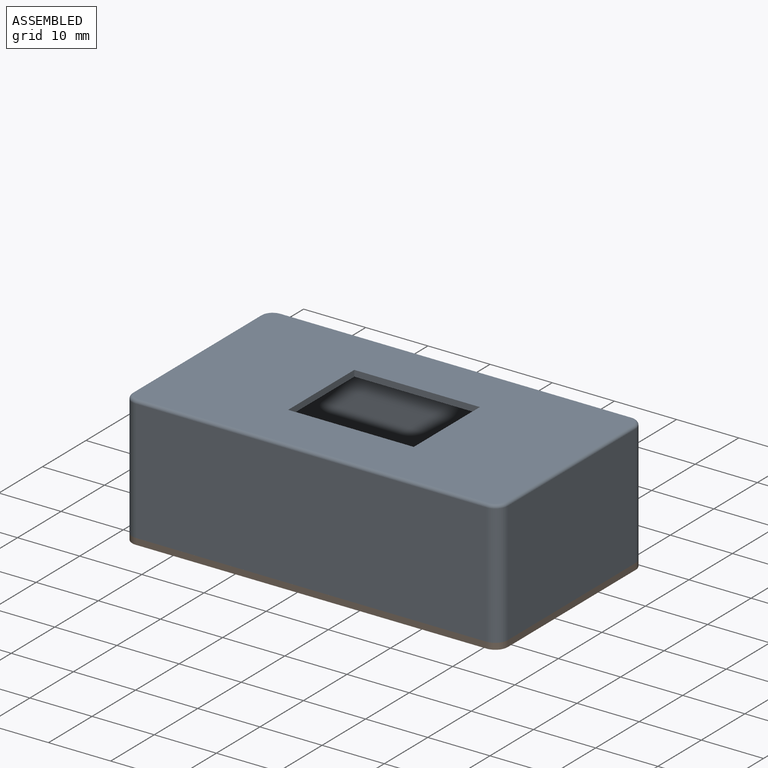
[diagram: assembled view]
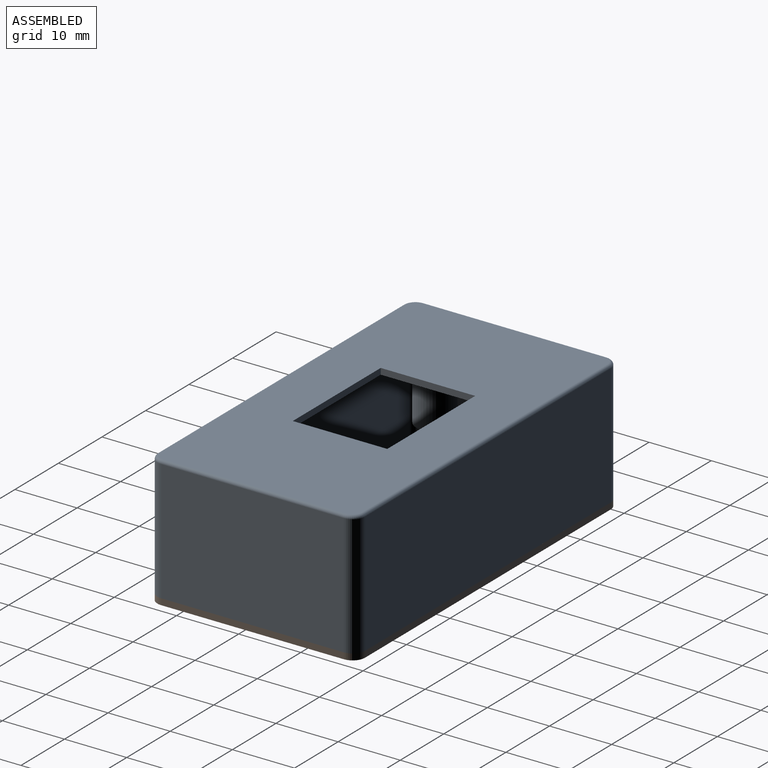
[diagram: assembled view, second angle]
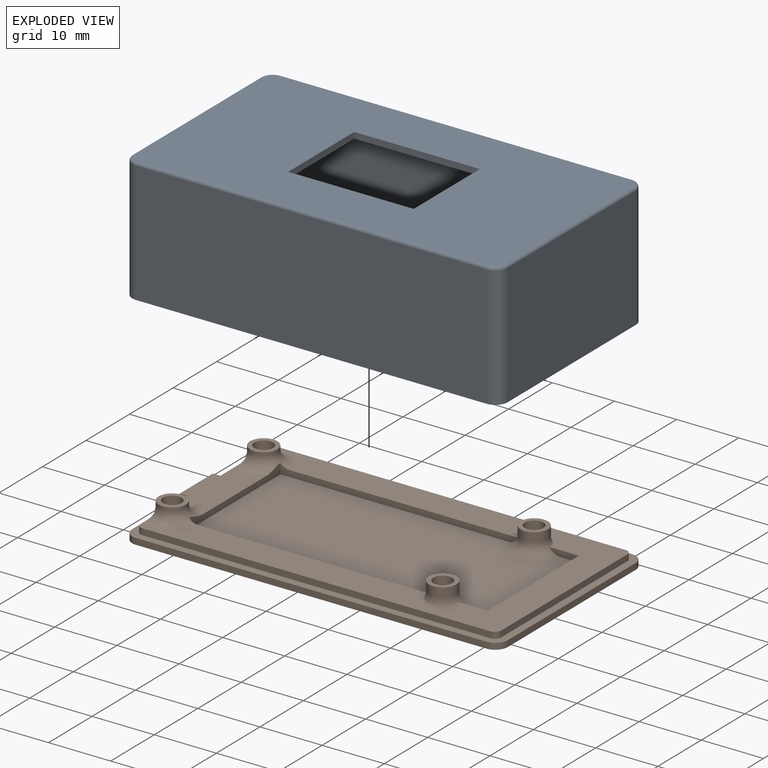
[diagram: exploded view]
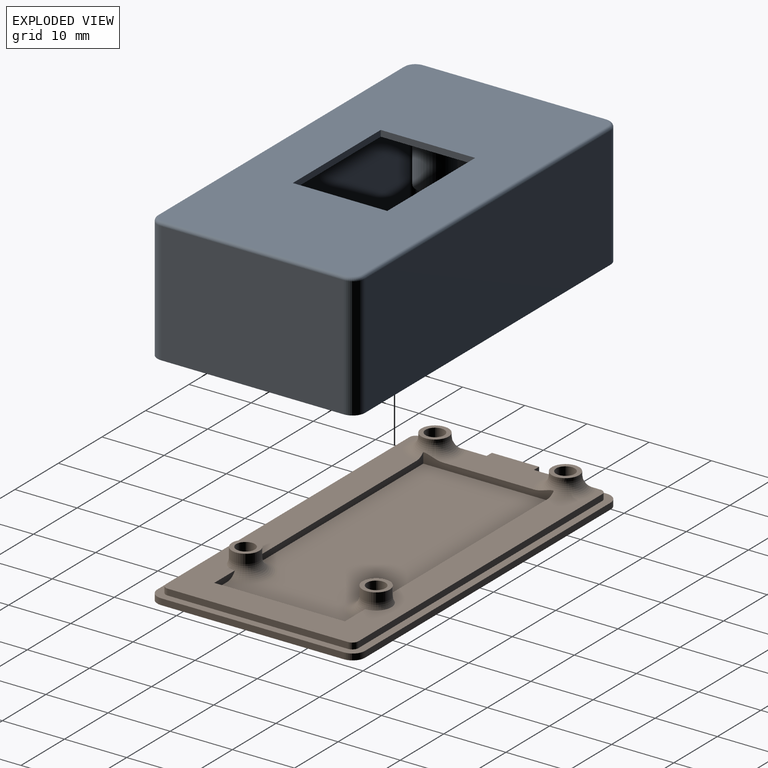
[diagram: exploded view, second angle]
ASSEMBLY  parts=2 mates=3
PART A: 54 faces, bbox 60.7x33.7x20 mm
  f0: plane 58.4x31.4mm, normal (0,0,-1), area 1407.9mm2, adj f1,f2,f3,f4,f11,f12,f13,f14
  f1: plane 56.4x19mm, normal (0,-1,0), area 1049.2mm2, adj f0,f5,f33,f35,f36,f44,f45
  f2: plane 29.4x19mm, normal (1,0,0), area 433.7mm2, adj f0,f5,f15,f16,f17,f19,f20,f23
  f3: plane 29.4x19mm, normal (-1,0,0), area 558.6mm2, adj f0,f5,f43,f44
  f4: plane 56.4x19mm, normal (0,1,0), area 1049.2mm2, adj f0,f5,f27,f28,f30,f42,f43
  f5: plane 60.4x33.4mm, normal (0,0,-1), area 173mm2, adj f1,f2,f3,f4,f6,f7,f8,f9
  f6: plane 56.4x19.5mm, normal (0,-1,0), area 1099.8mm2, adj f5,f40,f41,f46
  f7: plane 29.4x19.5mm, normal (1,0,0), area 573.3mm2, adj f5,f38,f41,f49
  f8: plane 56.4x19.5mm, normal (0,1,0), area 1099.8mm2, adj f5,f38,f39,f53
  f9: plane 29.4x19.5mm, normal (-1,0,0), area 541.3mm2, adj f5,f15,f16,f17,f39,f40,f50
  f10: plane 59.4x32.4mm, normal (0,0,1), area 1615.6mm2, adj f11,f12,f13,f14,f46,f47,f48,f49
  f11: plane 15.2x1mm, normal (-1,0,0), area 15.2mm2, adj f0,f10,f12,f14
  f12: plane 20.2x1mm, normal (0,-1,0), area 20.2mm2, adj f0,f10,f11,f13
  f13: plane 15.2x1mm, normal (1,0,0), area 15.2mm2, adj f0,f10,f12,f14
  f14: plane 20.2x1mm, normal (0,1,0), area 20.2mm2, adj f0,f10,f11,f13
  f15: plane 4x1mm, normal (0,-1,0), area 4mm2, adj f2,f5,f9,f16
  f16: plane 8x1mm, normal (0,0,-1), area 8mm2, adj f2,f9,f15,f17
  f17: plane 4x1mm, normal (0,1,0), area 4mm2, adj f2,f5,f9,f16
  f18: cylinder r=1.3mm len=14mm, axis (0,0,1), area 114.4mm2, adj f20,f21
  f19: cylinder r=3mm len=14mm, axis (0,0,1), area 214.7mm2, adj f0,f2,f20
  f20: plane 6x5.5mm, normal (0,0,-1), area 21.8mm2, adj f2,f18,f19
  f21: plane 2.6x2.6mm, normal (0,0,-1), area 5.3mm2, adj f18
  f22: cylinder r=1.3mm len=14mm, axis (0,0,1), area 114.4mm2, adj f24,f25
  f23: cylinder r=3mm len=14mm, axis (0,0,1), area 214.7mm2, adj f0,f2,f24
  f24: plane 6x5.5mm, normal (0,0,-1), area 21.8mm2, adj f2,f22,f23
  f25: plane 2.6x2.6mm, normal (0,0,-1), area 5.3mm2, adj f22
  f26: cylinder r=3mm len=14mm, axis (0,0,1), area 241.2mm2, adj f0,f27,f28,f30
  f27: plane 14x2.31mm, normal (1,0,0), area 32.3mm2, adj f0,f4,f26,f30
  f28: plane 14x2.31mm, normal (-1,0,0), area 32.3mm2, adj f0,f4,f26,f30
  f29: cylinder r=1.3mm len=14mm, axis (0,0,1), area 114.4mm2, adj f30,f31
  f30: plane 8.2x6mm, normal (0,0,-1), area 26.5mm2, adj f4,f26,f27,f28,f29
  f31: plane 2.6x2.6mm, normal (0,0,-1), area 5.3mm2, adj f29
  f32: cylinder r=3mm len=14mm, axis (0,0,1), area 241.2mm2, adj f0,f33,f35,f36
  f33: plane 14x2.31mm, normal (-1,0,0), area 32.3mm2, adj f0,f1,f32,f36
  f34: cylinder r=1.3mm len=14mm, axis (0,0,1), area 114.4mm2, adj f36,f37
  f35: plane 14x2.31mm, normal (1,0,0), area 32.3mm2, adj f0,f1,f32,f36
  f36: plane 8.2x6mm, normal (0,0,-1), area 26.5mm2, adj f1,f32,f33,f34,f35
  f37: plane 2.6x2.6mm, normal (0,0,-1), area 5.3mm2, adj f34
  f38: cylinder r=2mm len=19.5mm, axis (0,0,-1), area 61.3mm2, adj f5,f7,f8,f51
  f39: cylinder r=2mm len=19.5mm, axis (0,0,-1), area 61.3mm2, adj f5,f8,f9,f52
  f40: cylinder r=2mm len=19.5mm, axis (0,0,-1), area 61.3mm2, adj f5,f6,f9,f48
  f41: cylinder r=2mm len=19.5mm, axis (0,0,-1), area 61.3mm2, adj f5,f6,f7,f47
  f42: cylinder r=1mm len=19mm, axis (0,0,1), area 29.8mm2, adj f0,f2,f4,f5
  f43: cylinder r=1mm len=19mm, axis (0,0,1), area 29.8mm2, adj f0,f3,f4,f5
  f44: cylinder r=1mm len=19mm, axis (0,0,1), area 29.8mm2, adj f0,f1,f3,f5
  f45: cylinder r=1mm len=19mm, axis (0,0,1), area 29.8mm2, adj f0,f1,f2,f5
  f46: cylinder r=0.5mm len=56.4mm, axis (-1,0,0), area 44.3mm2, adj f6,f10,f47,f48
  f47: torus R=1.5mm, axis (0,0,1), area 2.2mm2, adj f10,f41,f46,f49
  f48: torus R=1.5mm, axis (0,0,1), area 2.2mm2, adj f10,f40,f46,f50
  f49: cylinder r=0.5mm len=29.4mm, axis (0,-1,0), area 23.1mm2, adj f7,f10,f47,f51
  f50: cylinder r=0.5mm len=29.4mm, axis (0,1,0), area 23.1mm2, adj f9,f10,f48,f52
  f51: torus R=1.5mm, axis (0,0,1), area 2.2mm2, adj f10,f38,f49,f53
  f52: torus R=1.5mm, axis (0,0,1), area 2.2mm2, adj f10,f39,f50,f53
  f53: cylinder r=0.5mm len=56.4mm, axis (1,0,0), area 44.3mm2, adj f8,f10,f51,f52
PART B: 56 faces, bbox 60.8x33.8x4.9 mm
  f0: plane 14.57x6.2mm, normal (0,0,1), area 74.8mm2, adj f6,f11,f15,f16,f17,f18,f50,f52
  f1: plane 48x21mm, normal (0,0,1), area 952.6mm2, adj f2,f3,f4,f5,f6,f7,f54,f55
  f2: plane 4.73x1mm, normal (0,1,0), area 4.2mm2, adj f1,f7,f10,f54
  f3: plane 38.33x1.68mm, normal (0,1,0), area 38.1mm2, adj f1,f6,f10,f50,f54
  f4: plane 38.33x1.68mm, normal (0,-1,0), area 38.1mm2, adj f1,f6,f10,f52,f55
  f5: plane 4.73x1mm, normal (0,-1,0), area 4.2mm2, adj f1,f7,f10,f55
  f6: plane 21x1.68mm, normal (1,0,0), area 23.1mm2, adj f0,f1,f3,f4,f50,f52
  f7: plane 21x1mm, normal (-1,0,0), area 21mm2, adj f1,f2,f5,f10
  f8: plane 60.4x33.4mm, normal (0,0,1), area 207.7mm2, adj f11,f12,f13,f14,f15,f16,f17,f18
  f9: plane 60.4x33.4mm, normal (0,0,-1), area 1935.4mm2, adj f17,f19,f20,f21,f26,f27,f28,f29
  f10: plane 58x31mm, normal (0,0,1), area 619mm2, adj f2,f3,f4,f5,f7,f11,f12,f13
  f11: plane 11.12x1.42mm, normal (-1,0,0), area 10.7mm2, adj f0,f8,f10,f18,f22,f51
  f12: plane 56x1mm, normal (0,-1,0), area 56mm2, adj f8,f10,f22,f23
  f13: plane 29x1mm, normal (1,0,0), area 29mm2, adj f8,f10,f23,f25
  f14: plane 56x1mm, normal (0,1,0), area 56mm2, adj f8,f10,f24,f25
  f15: plane 11.12x1.42mm, normal (-1,0,0), area 10.7mm2, adj f0,f8,f10,f16,f24,f53
  f16: plane 1.2x1mm, normal (0,1,0), area 1.2mm2, adj f0,f8,f15,f17
  f17: plane 29.4x2mm, normal (-1,0,0), area 37mm2, adj f0,f8,f9,f16,f18,f27,f28
  f18: plane 1.2x1mm, normal (0,-1,0), area 1.2mm2, adj f0,f8,f11,f17
  f19: plane 29.4x1mm, normal (1,0,0), area 29.4mm2, adj f8,f9,f26,f29
  f20: plane 56.4x1mm, normal (0,-1,0), area 56.4mm2, adj f8,f9,f26,f27
  f21: plane 56.4x1mm, normal (0,1,0), area 56.4mm2, adj f8,f9,f28,f29
  f22: cylinder r=1mm len=1mm, axis (0,0,-1), area 1.6mm2, adj f8,f10,f11,f12
  f23: cylinder r=1mm len=1mm, axis (0,0,-1), area 1.6mm2, adj f8,f10,f12,f13
  f24: cylinder r=1mm len=1mm, axis (0,0,-1), area 1.6mm2, adj f8,f10,f14,f15
  f25: cylinder r=1mm len=1mm, axis (0,0,-1), area 1.6mm2, adj f8,f10,f13,f14
  f26: cylinder r=2mm len=2mm, axis (0,0,1), area 3.1mm2, adj f8,f9,f19,f20
  f27: cylinder r=2mm len=2mm, axis (0,0,1), area 3.1mm2, adj f8,f9,f17,f20
  f28: cylinder r=2mm len=2mm, axis (0,0,1), area 3.1mm2, adj f8,f9,f17,f21
  f29: cylinder r=2mm len=2mm, axis (0,0,1), area 3.1mm2, adj f8,f9,f19,f21
  f30: cylinder r=2.2mm len=4.4mm, axis (0,0,-1), area 9.6mm2, adj f31,f52,f53
  f31: plane 4.4x4.4mm, normal (0,0,1), area 8.1mm2, adj f30,f47
  f32: cylinder r=2.2mm len=4.4mm, axis (0,0,-1), area 9.6mm2, adj f33,f50,f51
  f33: plane 4.4x4.4mm, normal (0,0,1), area 8.1mm2, adj f32,f44
  f34: cylinder r=2.2mm len=4.4mm, axis (0,0,-1), area 20.7mm2, adj f35,f55
  f35: plane 4.4x4.4mm, normal (0,0,1), area 8.1mm2, adj f34,f41
  f36: cylinder r=2.2mm len=4.4mm, axis (0,0,-1), area 20.7mm2, adj f37,f54
  f37: plane 4.4x4.4mm, normal (0,0,1), area 8.1mm2, adj f36,f38
  f38: cylinder r=1.5mm len=4mm, axis (0,0,-1), area 37.7mm2, adj f37,f39
  f39: plane 5x5mm, normal (0,0,-1), area 12.6mm2, adj f38,f40
  f40: cylinder r=2.5mm len=5mm, axis (0,0,-1), area 7.9mm2, adj f9,f39
  f41: cylinder r=1.5mm len=4mm, axis (0,0,-1), area 37.7mm2, adj f35,f42
  f42: plane 5x5mm, normal (0,0,-1), area 12.6mm2, adj f41,f43
  f43: cylinder r=2.5mm len=5mm, axis (0,0,-1), area 7.9mm2, adj f9,f42
  f44: cylinder r=1.5mm len=4mm, axis (0,0,-1), area 37.7mm2, adj f33,f45
  f45: plane 5x5mm, normal (0,0,-1), area 12.6mm2, adj f44,f46
  f46: cylinder r=2.5mm len=5mm, axis (0,0,-1), area 7.9mm2, adj f9,f45
  f47: cylinder r=1.5mm len=4mm, axis (0,0,-1), area 37.7mm2, adj f31,f48
  f48: plane 5x5mm, normal (0,0,-1), area 12.6mm2, adj f47,f49
  f49: cylinder r=2.5mm len=5mm, axis (0,0,-1), area 7.9mm2, adj f9,f48
  f50: torus R=4.2mm, axis (0,0,1), area 35.9mm2, adj f0,f3,f6,f10,f32,f51
  f51: bspline ~7.35x2.17mm, area 8.1mm2, adj f11,f32,f50
  f52: torus R=4.2mm, axis (0,0,1), area 35.9mm2, adj f0,f4,f6,f10,f30,f53
  f53: bspline ~7.35x2.17mm, area 8.1mm2, adj f15,f30,f52
  f54: torus R=4.2mm, axis (0,0,1), area 36.4mm2, adj f1,f2,f3,f10,f36
  f55: torus R=4.2mm, axis (0,0,1), area 36.4mm2, adj f1,f4,f5,f10,f34
PLACE A t=(-8.4,0.51,6.78)mm
PLACE B t=(-8.4,0.51,6.78)mm fixed
MATE planar B.f1 <-> A.f5  axis (0,0,1) through (-7.1,0.51,6.78)mm
MATE planar B.f21 <-> A.f8  axis (0,1,0) through (19.8,17.21,6.28)mm
MATE planar A.f7 <-> B.f19  axis (1,0,0) through (21.8,0.51,16.53)mm
